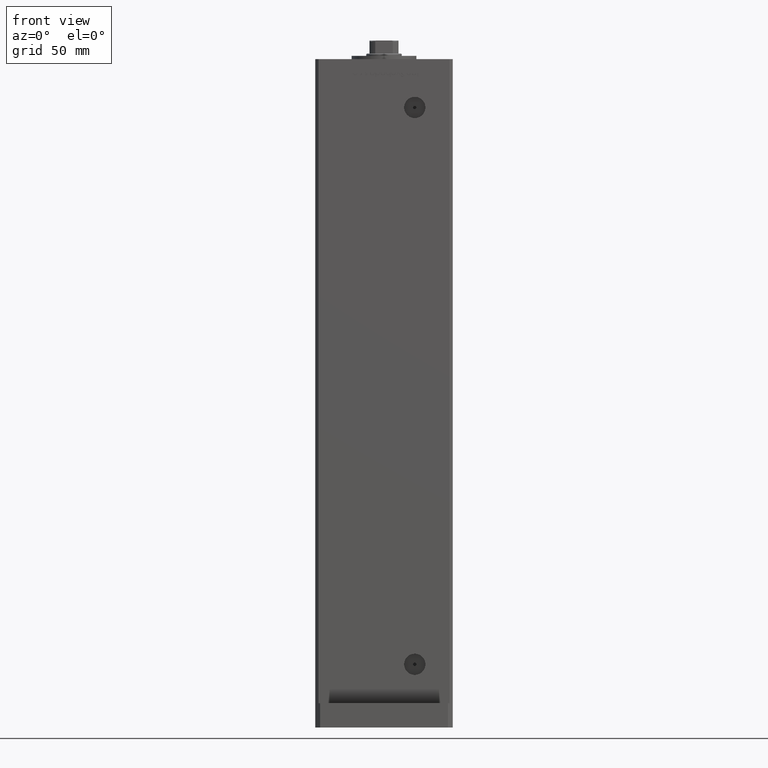
[diagram: clean part render]
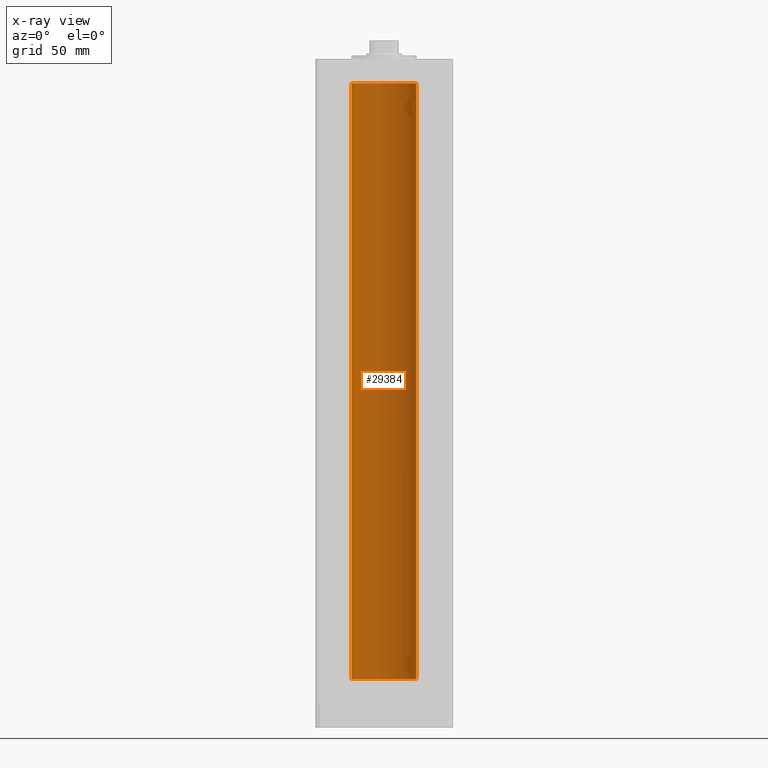
[diagram: x-ray — body ghosted, one internal face saturated and labeled with its STEP entity id]
A machine part, front view, then the same camera in x-ray: the body is ghosted and one INTERNAL B-rep face — a face not visible from any outside direction — is saturated and labeled: STEP entity #29384.
In plain terms, the highlighted cylindrical surface (edge-blend (fillet) strip) has radius 20 mm, axis along (-0, -0, -1).
Its self-contained STEP definition (entity closure, byte-faithful):
#582 = EDGE_CURVE ( 'NONE', #53743, #49152, #6177, .T. ) ;
#733 = CARTESIAN_POINT ( 'NONE',  ( 0.000000000000000000, 0.000000000000000000, 368.5000000000000000 ) ) ;
#2775 = VERTEX_POINT ( 'NONE', #11219 ) ;
#3671 = AXIS2_PLACEMENT_3D ( 'NONE', #10353, #35337, #22565 ) ;
#6177 = LINE ( 'NONE', #22730, #15388 ) ;
#6611 = CYLINDRICAL_SURFACE ( 'NONE', #52428, 20.00000000000000000 ) ;
#7072 = ORIENTED_EDGE ( 'NONE', *, *, #23297, .F. ) ;
#7408 = CARTESIAN_POINT ( 'NONE',  ( 20.00000000000000000, 2.449293598294706513E-15, 0.000000000000000000 ) ) ;
#8608 = DIRECTION ( 'NONE',  ( 1.000000000000000000, 0.000000000000000000, 0.000000000000000000 ) ) ;
#8903 = CIRCLE ( 'NONE', #3671, 20.00000000000000000 ) ;
#10353 = CARTESIAN_POINT ( 'NONE',  ( 0.000000000000000000, 0.000000000000000000, 0.000000000000000000 ) ) ;
#11219 = CARTESIAN_POINT ( 'NONE',  ( -20.00000000000000000, 0.000000000000000000, 368.5000000000000000 ) ) ;
#14202 = CARTESIAN_POINT ( 'NONE',  ( -20.00000000000000000, 0.000000000000000000, 368.5000000000000000 ) ) ;
#15286 = CARTESIAN_POINT ( 'NONE',  ( 0.000000000000000000, 0.000000000000000000, 368.5000000000000000 ) ) ;
#15388 = VECTOR ( 'NONE', #39328, 1000.000000000000000 ) ;
#15627 = ORIENTED_EDGE ( 'NONE', *, *, #33488, .T. ) ;
#17977 = CARTESIAN_POINT ( 'NONE',  ( 20.00000000000000000, 2.449293598294706513E-15, 368.5000000000000000 ) ) ;
#19090 = FACE_OUTER_BOUND ( 'NONE', #47268, .T. ) ;
#19286 = EDGE_CURVE ( 'NONE', #2775, #29398, #25887, .T. ) ;
#20027 = VECTOR ( 'NONE', #22609, 1000.000000000000000 ) ;
#22565 = DIRECTION ( 'NONE',  ( 1.000000000000000000, 0.000000000000000000, 0.000000000000000000 ) ) ;
#22609 = DIRECTION ( 'NONE',  ( -0.000000000000000000, -0.000000000000000000, -1.000000000000000000 ) ) ;
#22730 = CARTESIAN_POINT ( 'NONE',  ( 20.00000000000000000, 2.449293598294706513E-15, 368.5000000000000000 ) ) ;
#23152 = CARTESIAN_POINT ( 'NONE',  ( -20.00000000000000000, 0.000000000000000000, 0.000000000000000000 ) ) ;
#23297 = EDGE_CURVE ( 'NONE', #49152, #29398, #8903, .T. ) ;
#25887 = LINE ( 'NONE', #14202, #20027 ) ;
#28467 = ORIENTED_EDGE ( 'NONE', *, *, #19286, .T. ) ;
#29384 = ADVANCED_FACE ( 'NONE', ( #19090 ), #6611, .F. ) ;
#29398 = VERTEX_POINT ( 'NONE', #23152 ) ;
#33488 = EDGE_CURVE ( 'NONE', #53743, #2775, #51097, .T. ) ;
#35337 = DIRECTION ( 'NONE',  ( -0.000000000000000000, 0.000000000000000000, 1.000000000000000000 ) ) ;
#39328 = DIRECTION ( 'NONE',  ( -0.000000000000000000, -0.000000000000000000, -1.000000000000000000 ) ) ;
#42852 = DIRECTION ( 'NONE',  ( -0.000000000000000000, 0.000000000000000000, 1.000000000000000000 ) ) ;
#45003 = ORIENTED_EDGE ( 'NONE', *, *, #582, .F. ) ;
#47268 = EDGE_LOOP ( 'NONE', ( #45003, #15627, #28467, #7072 ) ) ;
#48724 = DIRECTION ( 'NONE',  ( -1.000000000000000000, 0.000000000000000000, 0.000000000000000000 ) ) ;
#49152 = VERTEX_POINT ( 'NONE', #7408 ) ;
#49391 = AXIS2_PLACEMENT_3D ( 'NONE', #733, #42852, #8608 ) ;
#51097 = CIRCLE ( 'NONE', #49391, 20.00000000000000000 ) ;
#51984 = DIRECTION ( 'NONE',  ( -0.000000000000000000, -0.000000000000000000, -1.000000000000000000 ) ) ;
#52428 = AXIS2_PLACEMENT_3D ( 'NONE', #15286, #51984, #48724 ) ;
#53743 = VERTEX_POINT ( 'NONE', #17977 ) ;